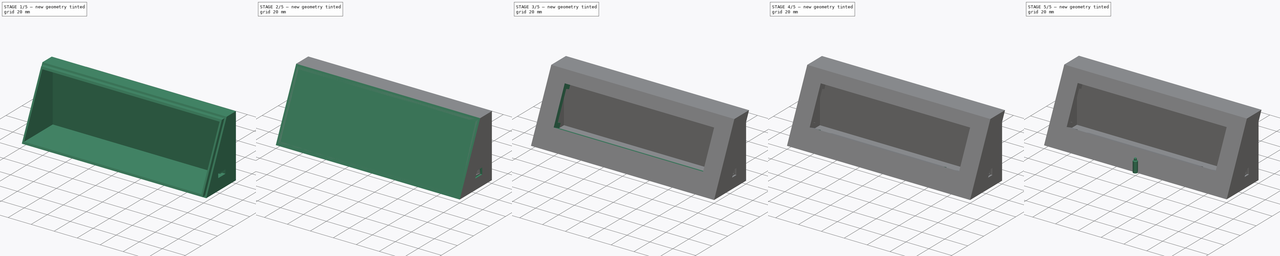
[diagram: build sequence overview — one tinted view per stage of 5, left to right]
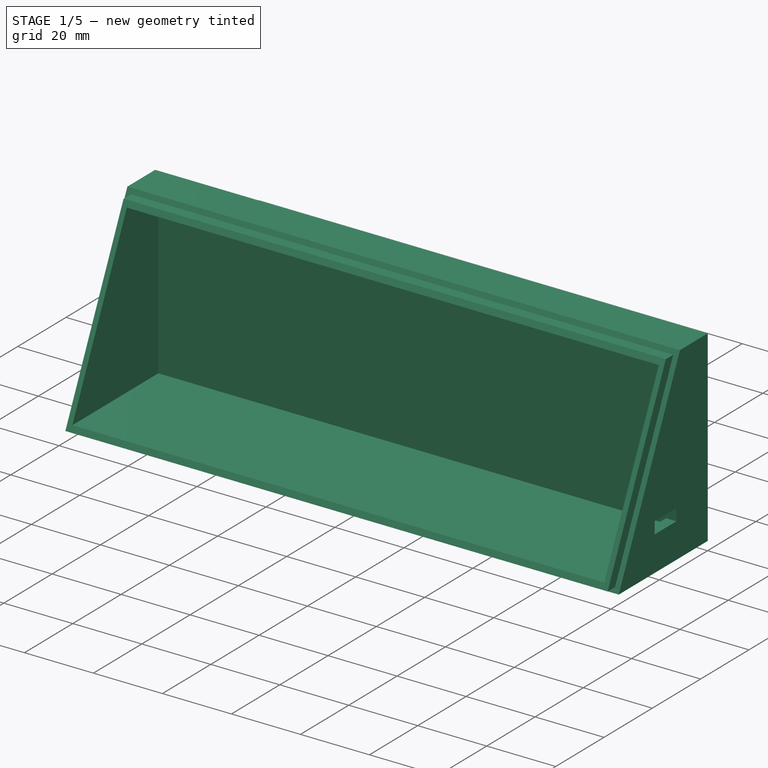
[diagram: stage 1 of 5 — iso view after this stage's code; geometry added in this stage tinted green]
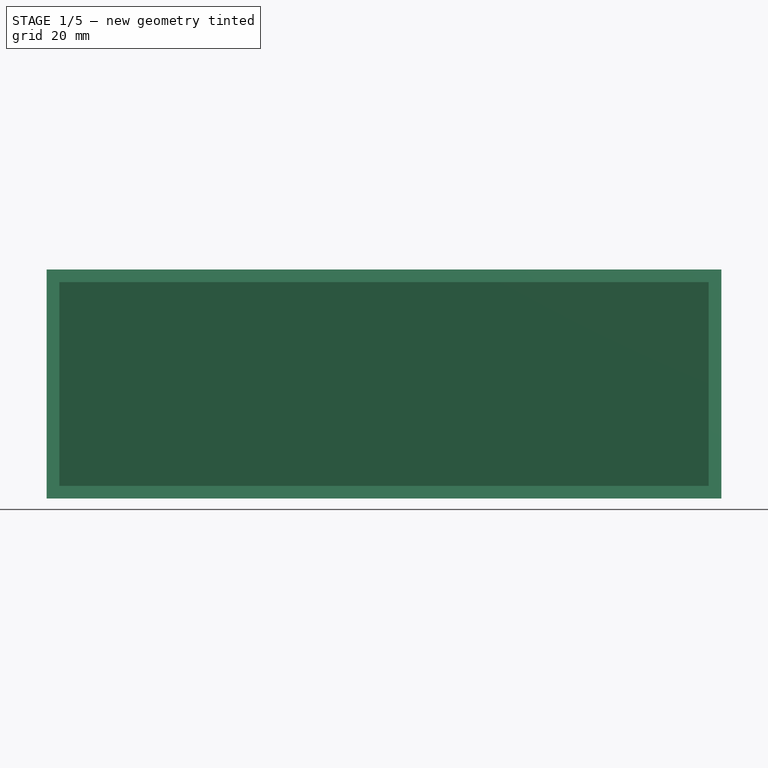
[diagram: stage 1 of 5 — front view after this stage's code; geometry added in this stage tinted green]
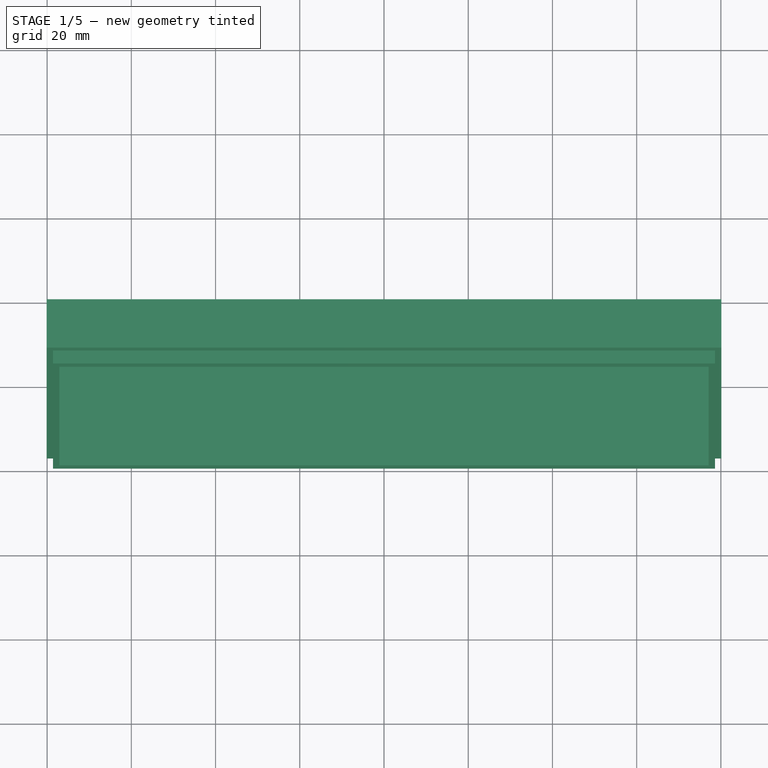
[diagram: stage 1 of 5 — top view after this stage's code; geometry added in this stage tinted green]
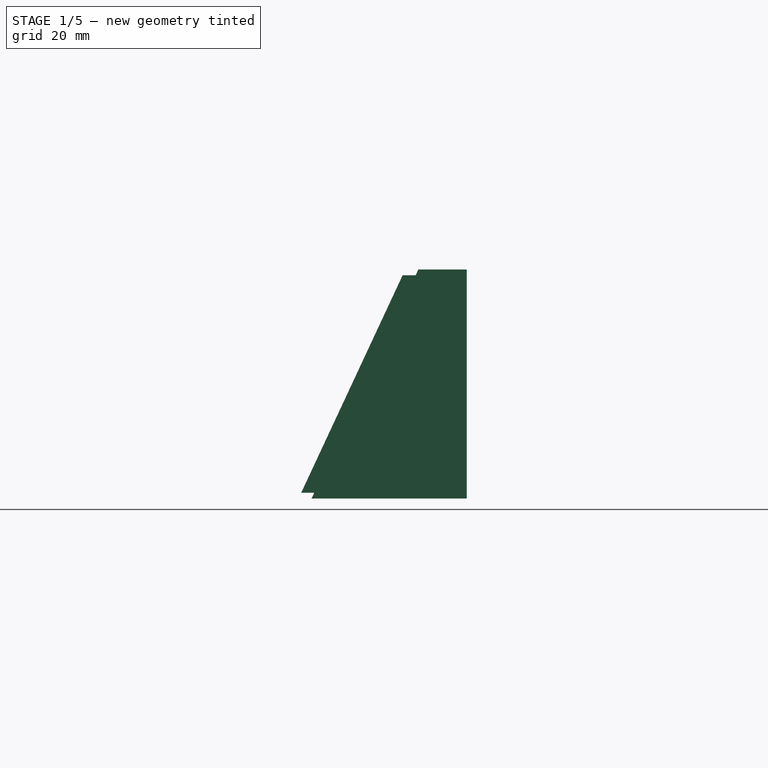
[diagram: stage 1 of 5 — right view after this stage's code; geometry added in this stage tinted green]
FCSTD DOCUMENT  (FreeCAD 1.0R39285 (Git))
Label: C1141 RevA6
License: All rights reserved
LicenseURL: https://en.wikipedia.org/wiki/All_rights_reserved
objects: Sketcher::SketchObject×16, PartDesign::Pocket×9, PartDesign::Pad×7, PartDesign::Chamfer×6, PartDesign::Body×3, PartDesign::Mirrored×2
note: 105 computed .brp shape members not serialized (recipe doc carries the construction recipe); baked Part::Feature solids carry a one-line shape summary decoded from their .brp

FEATURE [Sketcher::SketchObject] Sketch005
  ArcFitTolerance = 1e-06
  AttachmentSupport = -> [YZ_Plane001]
  FullyConstrained = true
  MakeInternals = false
  MapMode = 5
  Placement = pos=(0,0,0) rot=(0.57735,0.57735,0.57735;2.0944rad)
  sketch-geometry (11):
    g0: LineSegment [constr] StartX=0 StartY=0 StartZ=0 EndX=25.3571 EndY=54.3785 EndZ=0
    g1: LineSegment StartX=39.9582 StartY=54.3785 StartZ=0 EndX=39.9582 EndY=0 EndZ=0
    g2: LineSegment StartX=39.9582 StartY=0 StartZ=0 EndX=0 EndY=0 EndZ=0
    g3: LineSegment StartX=39.9582 StartY=54.3785 StartZ=0 EndX=25.3571 EndY=54.3785 EndZ=0
    g4: LineSegment StartX=23.9582 StartY=51.3785 StartZ=0 EndX=36.9582 EndY=51.3785 EndZ=0
    g5: LineSegment StartX=36.9582 StartY=51.3785 StartZ=0 EndX=36.9582 EndY=3 EndZ=0
    g6: LineSegment StartX=36.9582 StartY=3 StartZ=0 EndX=1.39892 EndY=3 EndZ=0
    g7: LineSegment StartX=1.39892 StartY=3 StartZ=0 EndX=0 EndY=0 EndZ=0
    g8: LineSegment StartX=25.3571 StartY=54.3785 StartZ=0 EndX=23.9582 EndY=51.3785 EndZ=0
    g9: LineSegment [constr] StartX=36.9582 StartY=51.3785 StartZ=0 EndX=39.9582 EndY=54.3785 EndZ=0
    g10: LineSegment [constr] StartX=36.9582 StartY=3 StartZ=0 EndX=39.9582 EndY=0 EndZ=0
  constraints (29):
    c: Coincident(g0,g-1)
    c: PointOnObject(g1,g-1)
    c: Vertical(g1)
    c: Coincident(g2,g1)
    c: Coincident(g2,g0)
    c: Coincident(g3,g1)
    c: Coincident(g3,g0)
    c: Coincident(g5,g4)
    c: Vertical(g5)
    c: Coincident(g6,g5)
    c: Coincident(g7,g6)
    c: Coincident(g7,g0)
    c: Angle(g2,g0) = 1.13446
    c: PointOnObject(g6,g0)
    c: Coincident(g8,g0)
    c: Coincident(g8,g4)
    c: Equal(g8,g7)
    c: PointOnObject(g4,g0)
    c: Horizontal(g4)
    c: Horizontal(g6)
    c: Horizontal(g3)
    c: Distance(g0,g0) = 60
    c: Coincident(g9,g4)
    c: Coincident(g9,g1)
    c: Coincident(g10,g5)
    c: Coincident(g10,g1)
    c: DistanceX(g9,g9) = 3
    c: DistanceY(g9,g9) = 3
    c: DistanceX(g4,g4) = 13
FEATURE [PartDesign::Pad] Pad003
  Direction = (1,0,0)
  Length = 154.2
  Length2 = 10
  Midplane = true
  Placement = pos=(0,0,0) rot=(1,1,1;2.0944rad)
  Profile = -> Sketch005
  ReferenceAxis = -> Sketch005 [N_Axis]
  Refine = true
  Suppressed = false
  Type = 0
FEATURE [Sketcher::SketchObject] Sketch006
  ArcFitTolerance = 1e-06
  AttachmentSupport = -> [Pad003]
  ExternalGeometry = -> [Pad003]
  FullyConstrained = true
  MakeInternals = false
  MapMode = 5
  Placement = pos=(77.1,0,0) rot=(0.57735,0.57735,0.57735;2.0944rad)
  sketch-geometry (4):
    g0: LineSegment StartX=39.9582 StartY=54.3785 StartZ=0 EndX=25.3571 EndY=54.3785 EndZ=0
    g1: LineSegment StartX=25.3571 StartY=54.3785 StartZ=0 EndX=0 EndY=0 EndZ=0
    g2: LineSegment StartX=0 StartY=0 StartZ=0 EndX=39.9582 EndY=0 EndZ=0
    g3: LineSegment StartX=39.9582 StartY=0 StartZ=0 EndX=39.9582 EndY=54.3785 EndZ=0
  constraints (8):
    c: Coincident(g0,g-3)
    c: Coincident(g1,g0)
    c: Coincident(g1,g-1)
    c: Coincident(g2,g1)
    c: Coincident(g2,g-3)
    c: Coincident(g3,g2)
    c: Coincident(g3,g0)
    c: Coincident(g0,g-4)
FEATURE [PartDesign::Pad] Pad004
  BaseFeature = -> Pad003
  Direction = (1,0,0)
  Length = 3
  Length2 = 10
  Placement = pos=(0,0,0) rot=(1,1,1;2.0944rad)
  Profile = -> Sketch006
  ReferenceAxis = -> Sketch006 [N_Axis]
  Refine = true
  Suppressed = false
  Type = 0
FEATURE [PartDesign::Mirrored] Mirrored001
  BaseFeature = -> Pad004
  MirrorPlane = -> YZ_Plane001
  Originals = -> [Pad004]
  Placement = pos=(0,0,0) rot=(1,1,1;2.0944rad)
  Refine = true
  Suppressed = false
  TransformMode = 0
FEATURE [Sketcher::SketchObject] Sketch007
  ArcFitTolerance = 1e-06
  AttachmentSupport = -> [Mirrored001]
  ExternalGeometry = -> [Mirrored001]
  FullyConstrained = true
  MakeInternals = false
  MapMode = 5
  Placement = pos=(0,6.4e-15,-3e-15) rot=(0.473306,0.473306,-0.742942;1.86366rad)
  sketch-geometry (14):
    g0: LineSegment StartX=-60 StartY=-80.1 StartZ=0 EndX=4.974e-13 EndY=-80.1 EndZ=0
    g1: LineSegment StartX=4.974e-13 StartY=-80.1 StartZ=0 EndX=-1.43e-14 EndY=80.1 EndZ=0
    g2: LineSegment StartX=-1.43e-14 StartY=80.1 StartZ=0 EndX=-60 EndY=80.1 EndZ=0
    g3: LineSegment StartX=-60 StartY=80.1 StartZ=0 EndX=-60 EndY=-80.1 EndZ=0
    g4: LineSegment StartX=-1.5 StartY=78.6 StartZ=0 EndX=-58.5 EndY=78.6 EndZ=0
    g5: LineSegment StartX=-58.5 StartY=78.6 StartZ=0 EndX=-58.5 EndY=-78.6 EndZ=0
    g6: LineSegment StartX=-58.5 StartY=-78.6 StartZ=0 EndX=-1.5 EndY=-78.6 EndZ=0
    g7: LineSegment StartX=-1.5 StartY=-78.6 StartZ=0 EndX=-1.5 EndY=78.6 EndZ=0
    g8: GeomPoint X=-30 Y=78.6 Z=0
    g9: GeomPoint X=-30 Y=80.1 Z=0
    g10: GeomPoint X=0 Y=0 Z=0
    g11: GeomPoint X=-1.5 Y=0 Z=0
    g12: LineSegment [constr] StartX=-1.5 StartY=0 StartZ=0 EndX=0 EndY=0 EndZ=0
    g13: LineSegment [constr] StartX=-30 StartY=78.6 StartZ=0 EndX=-30 EndY=80.1 EndZ=0
  constraints (29):
    c: Coincident(g0,g1)
    c: Coincident(g1,g2)
    c: Coincident(g2,g3)
    c: Coincident(g3,g0)
    c: Horizontal(g2)
    c: Vertical(g3)
    c: Coincident(g0,g-3)
    c: Coincident(g1,g-4)
    c: Coincident(g4,g5)
    c: Coincident(g5,g6)
    c: Coincident(g6,g7)
    c: Coincident(g7,g4)
    c: Horizontal(g4)
    c: Horizontal(g6)
    c: Vertical(g5)
    c: Vertical(g7)
    c: Symmetric(g4,g4,g8)
    c: Symmetric(g2,g2,g9)
    c: Symmetric(g1,g1,g10)
    c: Symmetric(g7,g7,g11)
    c: Coincident(g12,g11)
    c: Coincident(g13,g8)
    c: Symmetric(g2,g2,g13)
    c: Vertical(g13)
    c: Coincident(g10,g12)
    c: Coincident(g10,g-1)
    c: Horizontal(g12)
    c: DistanceY(g13,g13) = 1.5
    c: Distance(g12,g12) = 1.5
FEATURE [PartDesign::Pocket] Pocket002
  BaseFeature = -> Mirrored001
  Direction = (-1e-16,-1,1e-16)
  Length = 2.8
  Length2 = 5
  Placement = pos=(0,0,0) rot=(1,1,1;2.0944rad)
  Profile = -> Sketch007
  ReferenceAxis = -> Y_Axis001
  Refine = true
  Reversed = true
  Suppressed = false
  Type = 0
FEATURE [Sketcher::SketchObject] Sketch010
  ArcFitTolerance = 1e-06
  ExternalGeometry = -> [Pocket002]
  FullyConstrained = true
  MakeInternals = false
  MapMode = 5
  Placement = pos=(80.1,-3.56e-14,1.78e-14) rot=(0.57735,0.57735,0.57735;2.0944rad)
  expr: Constraints[20] = 6.6 mm + 1 mm
  sketch-geometry (8):
    g0: LineSegment StartX=17.9582 StartY=10.1 StartZ=0 EndX=26.9582 EndY=10.1 EndZ=0
    g1: LineSegment StartX=26.9582 StartY=10.1 StartZ=0 EndX=26.9582 EndY=13.6 EndZ=0
    g2: LineSegment StartX=26.9582 StartY=13.6 StartZ=0 EndX=17.9582 EndY=13.6 EndZ=0
    g3: LineSegment StartX=17.9582 StartY=13.6 StartZ=0 EndX=17.9582 EndY=10.1 EndZ=0
    g4: LineSegment [constr] StartX=17.9582 StartY=10.1 StartZ=0 EndX=11.9582 EndY=10.6 EndZ=0
    g5: LineSegment [constr] StartX=26.9582 StartY=10.1 StartZ=0 EndX=32.9582 EndY=10.6 EndZ=0
    g6: LineSegment [constr] StartX=32.9582 StartY=10.6 StartZ=0 EndX=11.9582 EndY=10.6 EndZ=0
    g7: LineSegment [constr] StartX=32.9582 StartY=10.6 StartZ=0 EndX=36.9582 EndY=3 EndZ=0
  constraints (22):
    c: Coincident(g0,g1)
    c: Coincident(g1,g2)
    c: Coincident(g2,g3)
    c: Coincident(g3,g0)
    c: Horizontal(g0)
    c: Horizontal(g2)
    c: Vertical(g1)
    c: Vertical(g3)
    c: DistanceX(g2,g2) = 9
    c: DistanceY(g3,g3) = 3.5
    c: Coincident(g4,g0)
    c: Coincident(g5,g0)
    c: Equal(g5,g4)
    c: DistanceY(g4,g4) = 0.5
    c: Coincident(g6,g5)
    c: Coincident(g6,g4)
    c: Horizontal(g6)
    c: Coincident(g7,g5)
    c: DistanceX(g6,g6) = 21
    c: DistanceX(g7,g7) = 4
    c: DistanceY(g7,g7) = 7.6
    c: Coincident(g7,g-3)
FEATURE [PartDesign::Pocket] Pocket003
  BaseFeature = -> Pocket002
  Direction = (-1,-1e-16,1e-16)
  Length = 5
  Length2 = 5
  Placement = pos=(0,0,0) rot=(1,1,1;2.0944rad)
  Profile = -> Sketch010
  ReferenceAxis = -> Sketch010 [N_Axis]
  Refine = true
  Suppressed = false
  Type = 2
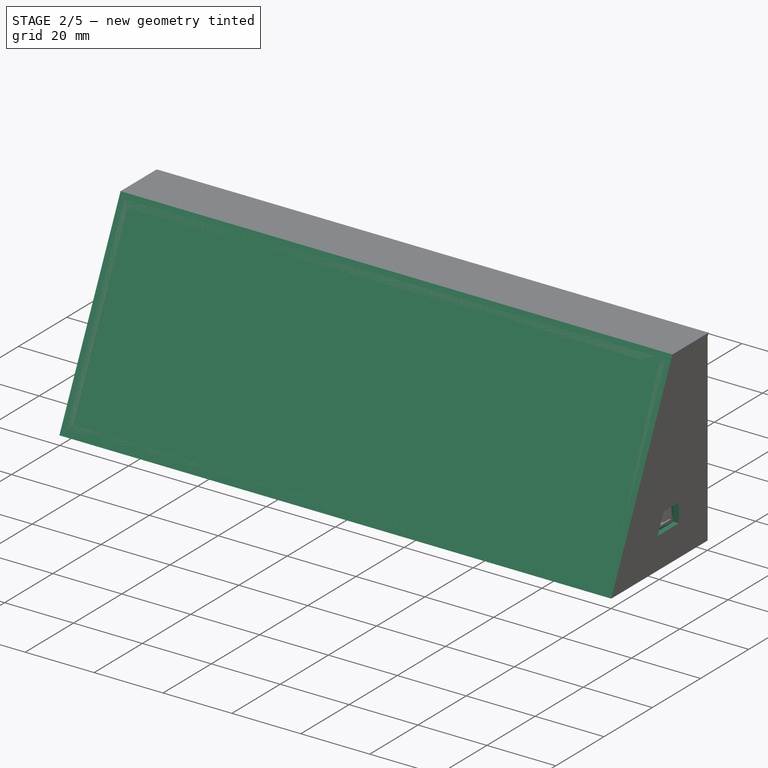
[diagram: stage 2 of 5 — iso view after this stage's code; geometry added in this stage tinted green]
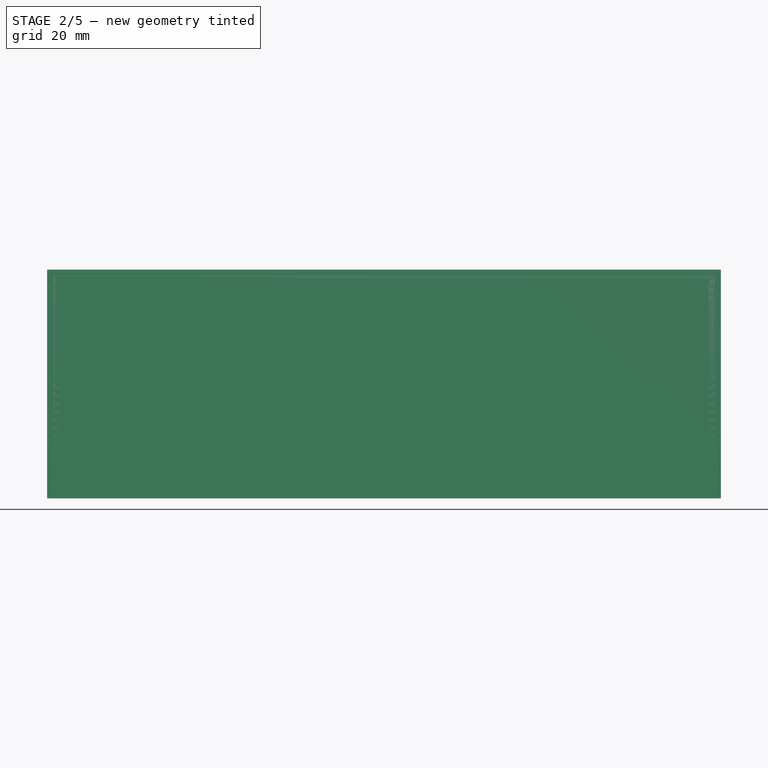
[diagram: stage 2 of 5 — front view after this stage's code; geometry added in this stage tinted green]
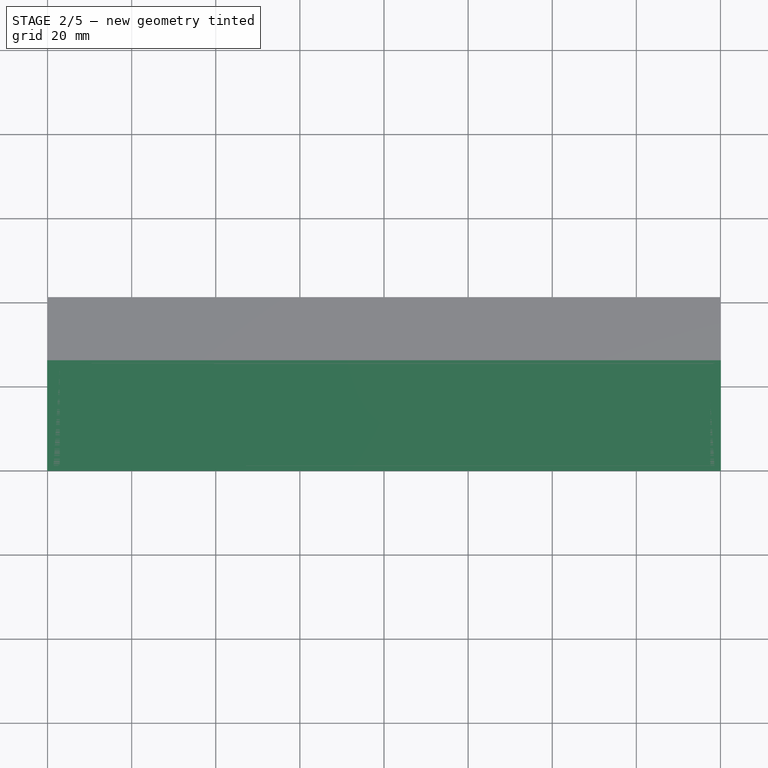
[diagram: stage 2 of 5 — top view after this stage's code; geometry added in this stage tinted green]
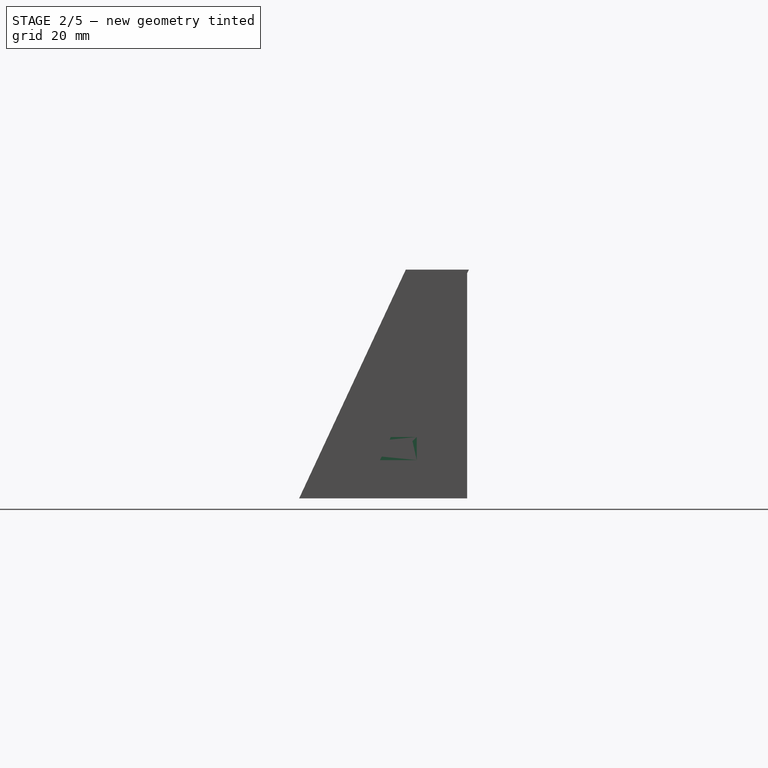
[diagram: stage 2 of 5 — right view after this stage's code; geometry added in this stage tinted green]
FEATURE [Sketcher::SketchObject] Sketch
  ArcFitTolerance = 1e-06
  AttachmentSupport = -> [YZ_Plane]
  FullyConstrained = true
  MakeInternals = false
  MapMode = 5
  Placement = pos=(0,0,0) rot=(0.57735,0.57735,0.57735;2.0944rad)
  sketch-geometry (21):
    g0: LineSegment StartX=0 StartY=0 StartZ=0 EndX=25.3571 EndY=54.3785 EndZ=0
    g1: LineSegment StartX=25.3571 StartY=54.3785 StartZ=0 EndX=40.3571 EndY=54.3785 EndZ=0
    g2: LineSegment StartX=15 StartY=0 StartZ=0 EndX=0 EndY=0 EndZ=0
    g3: LineSegment [constr] StartX=3.59226 StartY=7.70362 StartZ=0 EndX=17.1869 EndY=1.36434 EndZ=0
    g4: LineSegment [constr] StartX=17.1869 StartY=1.36434 StartZ=0 EndX=35.3595 EndY=40.3356 EndZ=0
    g5: LineSegment [constr] StartX=35.3595 StartY=40.3356 StartZ=0 EndX=21.7648 EndY=46.6749 EndZ=0
    g6: LineSegment [constr] StartX=21.7648 StartY=46.6749 StartZ=0 EndX=3.59226 EndY=7.70362 EndZ=0
    g7: LineSegment [constr] StartX=35.3595 StartY=40.3356 StartZ=0 EndX=25.3571 EndY=54.3785 EndZ=0
    g8: LineSegment [constr] StartX=17.1869 StartY=1.36434 StartZ=0 EndX=0 EndY=0 EndZ=0
    g9: LineSegment [constr] StartX=25.3571 StartY=54.3785 StartZ=0 EndX=21.0198 EndY=45.0772 EndZ=0
    g10: LineSegment [constr] StartX=21.0198 StartY=45.0772 StartZ=0 EndX=28.089 EndY=41.7808 EndZ=0
    g11: LineSegment StartX=28.089 StartY=41.7808 StartZ=0 EndX=32.5645 EndY=51.3785 EndZ=0
    g12: LineSegment StartX=32.5645 StartY=51.3785 StartZ=0 EndX=38.9582 EndY=51.3785 EndZ=0
    g13: LineSegment StartX=16.3989 StartY=3 StartZ=0 EndX=10.0053 EndY=3 EndZ=0
    g14: LineSegment StartX=10.0053 StartY=3 StartZ=0 EndX=14.4807 EndY=12.5977 EndZ=0
    g15: LineSegment [constr] StartX=14.4807 StartY=12.5977 StartZ=0 EndX=7.41154 EndY=15.8941 EndZ=0
    g16: LineSegment [constr] StartX=7.41154 StartY=15.8941 StartZ=0 EndX=-9e-16 EndY=0 EndZ=0
    g17: LineSegment StartX=38.9582 StartY=51.3785 StartZ=0 EndX=40.3571 EndY=54.3785 EndZ=0
    g18: LineSegment StartX=16.3989 StartY=3 StartZ=0 EndX=15 EndY=0 EndZ=0
    g19: LineSegment StartX=28.089 StartY=41.7808 StartZ=0 EndX=14.4807 EndY=12.5977 EndZ=0
    g20: LineSegment [constr] StartX=38.9582 StartY=51.3785 StartZ=0 EndX=16.3989 EndY=3 EndZ=0
  constraints (58):
    c: Coincident(g0,g-1)
    c: Coincident(g1,g0)
    c: Horizontal(g1)
    c: PointOnObject(g2,g-1)
    c: Coincident(g2,g0)
    c: Distance(g0,g0) = 60
    c: Angle(g2,g0) = 1.13446
    c: Coincident(g3,g4)
    c: Coincident(g4,g5)
    c: Coincident(g5,g6)
    c: Coincident(g6,g3)
    c: PointOnObject(g5,g0)
    c: Perpendicular(g5,g6)
    c: Perpendicular(g3,g6)
    c: Perpendicular(g3,g4)
    c: PointOnObject(g3,g0)
    c: Distance(g4,g4) = 43
    c: Distance(g5,g5) = 15
    c: Coincident(g7,g4)
    c: Coincident(g7,g0)
    c: Coincident(g8,g3)
    c: Coincident(g8,g0)
    c: Equal(g7,g8)
    c: DistanceX(g1,g1) = 15
    c: Coincident(g9,g0)
    c: Coincident(g10,g9)
    c: Coincident(g11,g10)
    c: Coincident(g12,g11)
    c: Horizontal(g12)
    c: Horizontal(g13)
    c: Coincident(g14,g13)
    c: Coincident(g15,g14)
    c: Coincident(g16,g15)
    c: Coincident(g16,g0)
    c: Parallel(g16,g0)
    c: Perpendicular(g16,g15)
    c: Perpendicular(g15,g14)
    c: Perpendicular(g10,g9)
    c: Perpendicular(g10,g11)
    c: Parallel(g9,g0)
    c: Equal(g10,g15)
    c: Coincident(g17,g1)
    c: Coincident(g17,g12)
    c: DistanceY(g17,g17) = 3
    c: Equal(g18,g17)
    c: Coincident(g19,g10)
    c: Coincident(g19,g14)
    c: Distance(g19,g19) = 32.2
    c: Distance(g15,g15) = 7.8
    c: Equal(g11,g14)
    c: Coincident(g13,g18)
    c: Coincident(g2,g18)
    c: Coincident(g20,g12)
    c: Coincident(g20,g13)
    c: Parallel(g20,g18)
    c: Parallel(g20,g17)
    c: Parallel(g18,g0)
    c: DistanceX(g2,g2) = 15
FEATURE [PartDesign::Pad] Pad
  Direction = (1,0,0)
  Length = 154.2
  Length2 = 10
  Midplane = true
  Placement = pos=(0,0,0) rot=(1,1,1;2.0944rad)
  Profile = -> Sketch
  ReferenceAxis = -> Sketch [N_Axis]
  Refine = true
  Suppressed = false
  Type = 0
FEATURE [Sketcher::SketchObject] Sketch001
  ArcFitTolerance = 1e-06
  AttachmentSupport = -> [Pad]
  ExternalGeometry = -> [Pad]
  FullyConstrained = true
  MakeInternals = false
  MapMode = 5
  Placement = pos=(77.1,0,0) rot=(0.57735,0.57735,0.57735;2.0944rad)
  sketch-geometry (4):
    g0: LineSegment StartX=40.3571 StartY=54.3785 StartZ=0 EndX=15 EndY=0 EndZ=0
    g1: LineSegment StartX=15 StartY=0 StartZ=0 EndX=0 EndY=0 EndZ=0
    g2: LineSegment StartX=0 StartY=0 StartZ=0 EndX=25.3571 EndY=54.3785 EndZ=0
    g3: LineSegment StartX=25.3571 StartY=54.3785 StartZ=0 EndX=40.3571 EndY=54.3785 EndZ=0
  constraints (8):
    c: Coincident(g0,g-3)
    c: Coincident(g0,g-4)
    c: Coincident(g1,g0)
    c: Coincident(g1,g-1)
    c: Coincident(g2,g1)
    c: Coincident(g2,g-5)
    c: Coincident(g3,g2)
    c: Coincident(g3,g0)
FEATURE [PartDesign::Pad] Pad001
  BaseFeature = -> Pad
  Direction = (1,0,0)
  Length = 3
  Length2 = 10
  Placement = pos=(0,0,0) rot=(1,1,1;2.0944rad)
  Profile = -> Sketch001
  ReferenceAxis = -> Sketch001 [N_Axis]
  Refine = true
  Suppressed = false
  Type = 0
FEATURE [PartDesign::Mirrored] Mirrored
  BaseFeature = -> Pad001
  MirrorPlane = -> YZ_Plane
  Originals = -> [Pad001]
  Placement = pos=(0,0,0) rot=(1,1,1;2.0944rad)
  Refine = true
  Suppressed = false
  TransformMode = 0
FEATURE [Sketcher::SketchObject] Sketch011
  ArcFitTolerance = 1e-06
  AttachmentSupport = -> [Pocket003]
  ExternalGeometry = -> [Pocket003]
  FullyConstrained = true
  MakeInternals = false
  MapMode = 5
  Placement = pos=(80.1,0,0) rot=(0.57735,0.57735,0.57735;2.0944rad)
  sketch-geometry (10):
    g0: LineSegment StartX=16.9582 StartY=14.6 StartZ=0 EndX=16.9582 EndY=9.1 EndZ=0
    g1: LineSegment StartX=16.9582 StartY=9.1 StartZ=0 EndX=27.9582 EndY=9.1 EndZ=0
    g2: LineSegment StartX=27.9582 StartY=9.1 StartZ=0 EndX=27.9582 EndY=14.6 EndZ=0
    g3: LineSegment StartX=27.9582 StartY=14.6 StartZ=0 EndX=16.9582 EndY=14.6 EndZ=0
    g4: GeomPoint X=22.4582 Y=14.6 Z=0
    g5: GeomPoint X=22.4582 Y=13.6 Z=0
    g6: GeomPoint X=16.9582 Y=11.85 Z=0
    g7: GeomPoint X=17.9582 Y=11.85 Z=0
    g8: LineSegment [constr] StartX=17.9582 StartY=11.85 StartZ=0 EndX=16.9582 EndY=11.85 EndZ=0
    g9: LineSegment [constr] StartX=22.4582 StartY=13.6 StartZ=0 EndX=22.4582 EndY=14.6 EndZ=0
  constraints (20):
    c: Coincident(g0,g1)
    c: Coincident(g1,g2)
    c: Coincident(g2,g3)
    c: Coincident(g3,g0)
    c: Vertical(g0)
    c: Vertical(g2)
    c: Horizontal(g1)
    c: Horizontal(g3)
    c: Symmetric(g3,g3,g4)
    c: Symmetric(g-4,g-4,g5)
    c: Symmetric(g0,g0,g6)
    c: Symmetric(g-5,g-5,g7)
    c: Coincident(g8,g7)
    c: Coincident(g8,g6)
    c: Horizontal(g8)
    c: Coincident(g9,g5)
    c: Coincident(g9,g4)
    c: Vertical(g9)
    c: DistanceX(g0,g-5) = 1
    c: DistanceY(g-5,g0) = 1
FEATURE [PartDesign::Pocket] Pocket004
  BaseFeature = -> Pocket003
  Direction = (-1,0,0)
  Length = 1.5
  Length2 = 5
  Placement = pos=(0,0,0) rot=(1,1,1;2.0944rad)
  Profile = -> Sketch011
  ReferenceAxis = -> Sketch011 [N_Axis]
  Refine = true
  Suppressed = false
  Type = 0
FEATURE [PartDesign::Body] Body  label="C1141"
  AllowCompound = false
  Group = -> [Sketch,Pad,Sketch001,Pad001,Mirrored,Sketch002,Pocket,Sketch003,Pocket001,Sketch004,Pad002,Sketch014,Pocket006,Sketch015,Pocket007,Chamfer,Chamfer001,Chamfer005]
  Origin = -> Origin
  Tip = -> Chamfer005
FEATURE [Sketcher::SketchObject] Sketch016
  ArcFitTolerance = 1e-06
  AttachmentSupport = -> [Pocket004]
  ExternalGeometry = -> [Pocket004]
  FullyConstrained = true
  MakeInternals = false
  MapMode = 5
  Placement = pos=(77.1,0,0) rot=(0.57735,0.57735,-0.57735;4.18879rad)
  sketch-geometry (12):
    g0: LineSegment StartX=27.9582 StartY=-9.1 StartZ=0 EndX=16.9582 EndY=-9.1 EndZ=0
    g1: LineSegment StartX=16.9582 StartY=-9.1 StartZ=0 EndX=16.9582 EndY=-14.6 EndZ=0
    g2: LineSegment StartX=16.9582 StartY=-14.6 StartZ=0 EndX=27.9582 EndY=-14.6 EndZ=0
    g3: LineSegment StartX=27.9582 StartY=-14.6 StartZ=0 EndX=27.9582 EndY=-9.1 EndZ=0
    g4: GeomPoint X=22.4582 Y=-10.1 Z=0
    g5: GeomPoint X=22.4582 Y=-9.1 Z=0
    g6: GeomPoint X=22.4582 Y=-13.6 Z=0
    g7: GeomPoint X=22.4582 Y=-14.6 Z=0
    g8: LineSegment [constr] StartX=22.4582 StartY=-10.1 StartZ=0 EndX=22.4582 EndY=-9.1 EndZ=0
    g9: GeomPoint [constr] X=17.9582 Y=-11.85 Z=0
    g10: GeomPoint [constr] X=16.9582 Y=-11.85 Z=0
    g11: LineSegment [constr] StartX=17.9582 StartY=-11.85 StartZ=0 EndX=16.9582 EndY=-11.85 EndZ=0
  constraints (22):
    c: Coincident(g0,g1)
    c: Coincident(g1,g2)
    c: Coincident(g2,g3)
    c: Coincident(g3,g0)
    c: Horizontal(g0)
    c: Horizontal(g2)
    c: Vertical(g1)
    c: Vertical(g3)
    c: Symmetric(g-3,g-3,g4)
    c: Symmetric(g0,g0,g5)
    c: Symmetric(g-4,g-4,g6)
    c: Symmetric(g2,g2,g7)
    c: Coincident(g8,g4)
    c: Coincident(g8,g5)
    c: Vertical(g8)
    c: Symmetric(g-5,g-5,g9)
    c: Symmetric(g1,g1,g10)
    c: Symmetric(g-5,g-5,g11)
    c: Coincident(g11,g10)
    c: Horizontal(g11)
    c: Equal(g8,g11)
    c: DistanceY(g8,g8) = 1
FEATURE [PartDesign::Pocket] Pocket008
  BaseFeature = -> Pocket004
  Direction = (1,0,0)
  Length = 1
  Length2 = 5
  Placement = pos=(0,0,0) rot=(1,1,1;2.0944rad)
  Profile = -> Sketch016
  ReferenceAxis = -> Sketch016 [N_Axis]
  Refine = true
  Suppressed = false
  Type = 0
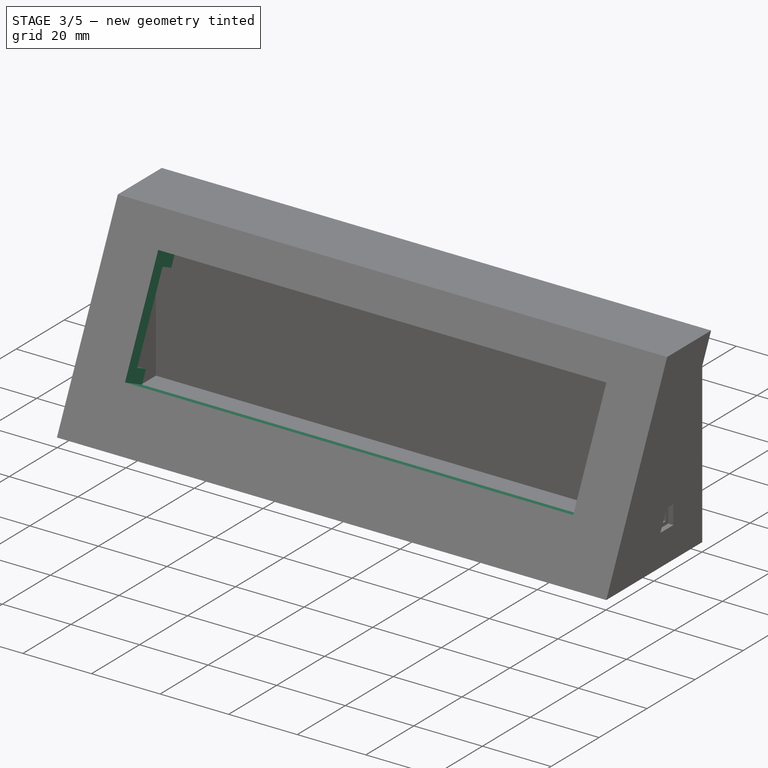
[diagram: stage 3 of 5 — iso view after this stage's code; geometry added in this stage tinted green]
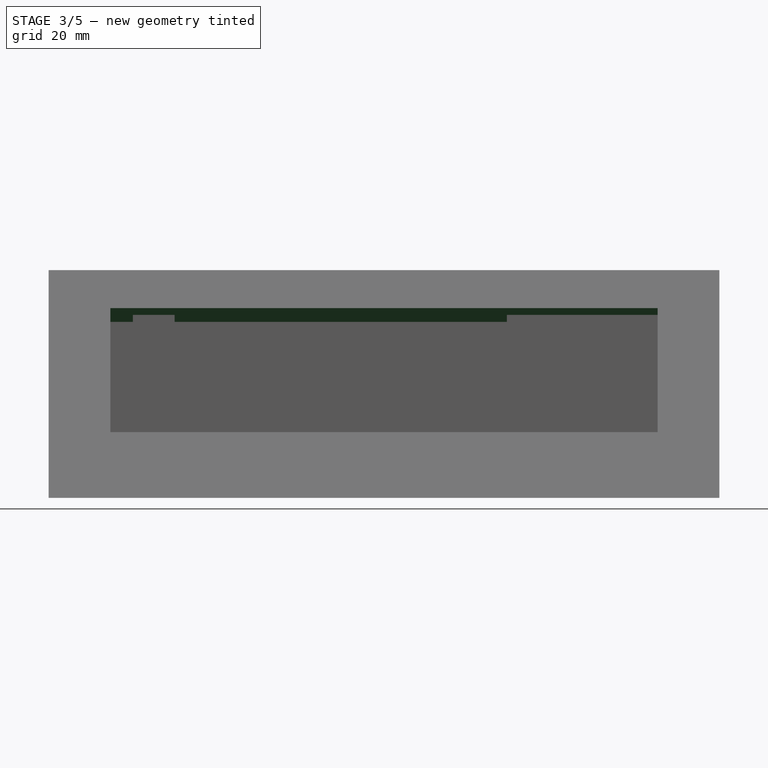
[diagram: stage 3 of 5 — front view after this stage's code; geometry added in this stage tinted green]
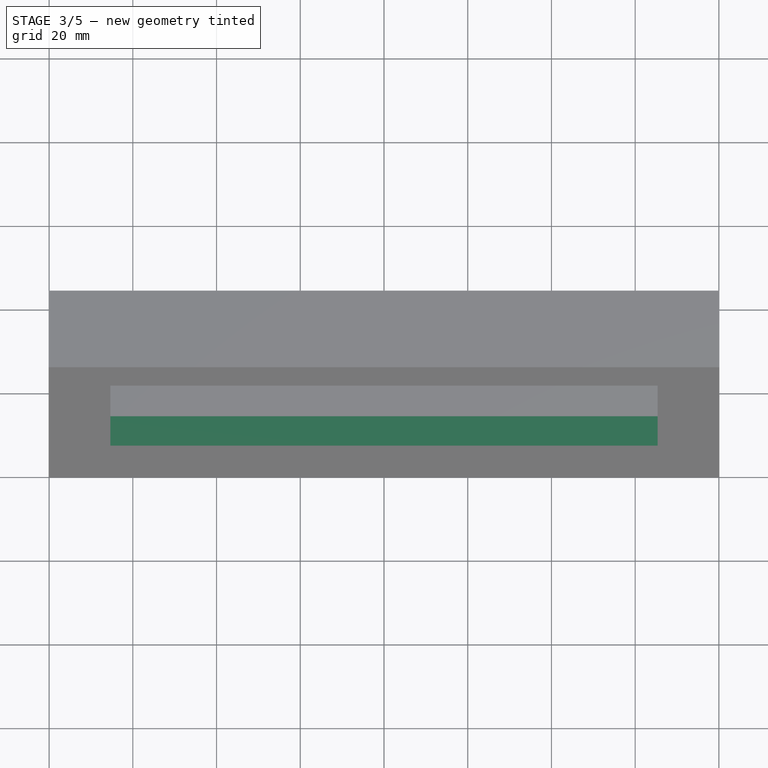
[diagram: stage 3 of 5 — top view after this stage's code; geometry added in this stage tinted green]
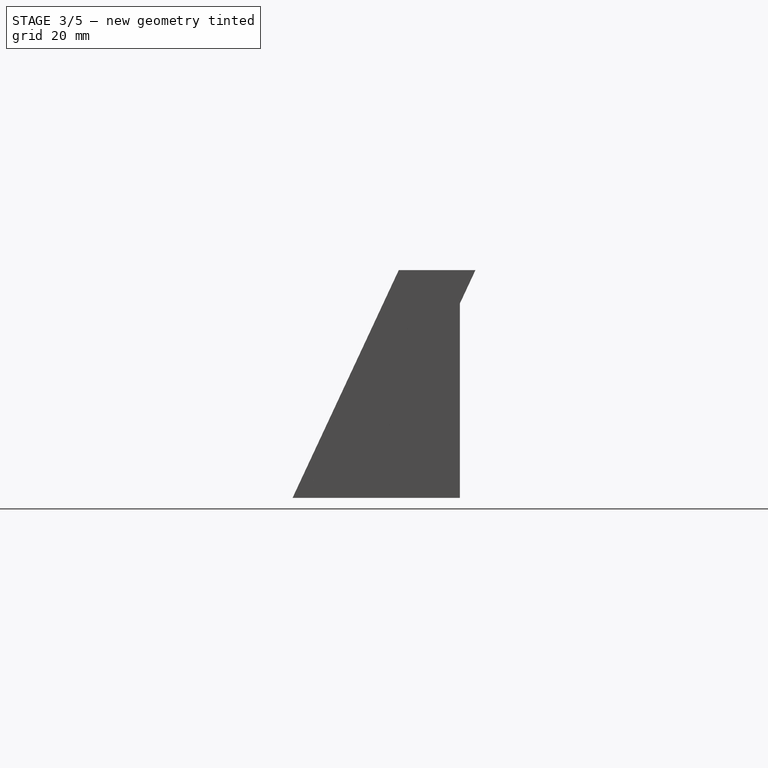
[diagram: stage 3 of 5 — right view after this stage's code; geometry added in this stage tinted green]
FEATURE [Sketcher::SketchObject] Sketch002
  ArcFitTolerance = 1e-06
  AttachmentSupport = -> [Mirrored]
  ExternalGeometry = -> [Mirrored]
  FullyConstrained = true
  MakeInternals = false
  MapMode = 5
  Placement = pos=(0,-1.45e-14,6.8e-15) rot=(0.473306,0.473306,-0.742942;1.86366rad)
  sketch-geometry (7):
    g0: LineSegment StartX=-17.3 StartY=-65.35 StartZ=0 EndX=-17.3 EndY=65.35 EndZ=0
    g1: LineSegment StartX=-17.3 StartY=65.35 StartZ=0 EndX=-50 EndY=65.35 EndZ=0
    g2: LineSegment StartX=-50 StartY=65.35 StartZ=0 EndX=-50 EndY=-65.35 EndZ=0
    g3: LineSegment StartX=-50 StartY=-65.35 StartZ=0 EndX=-17.3 EndY=-65.35 EndZ=0
    g4: LineSegment [constr] StartX=-50 StartY=-65.35 StartZ=0 EndX=-60 EndY=-80.1 EndZ=0
    g5: LineSegment [constr] StartX=-50 StartY=65.35 StartZ=0 EndX=-60 EndY=80.1 EndZ=0
    g6: LineSegment [constr] StartX=-17.3 StartY=65.35 StartZ=0 EndX=1.42e-14 EndY=80.1 EndZ=0
  constraints (19):
    c: Coincident(g0,g1)
    c: Coincident(g1,g2)
    c: Coincident(g2,g3)
    c: Coincident(g3,g0)
    c: Vertical(g0)
    c: Vertical(g2)
    c: Horizontal(g1)
    c: Horizontal(g3)
    c: DistanceY(g2,g2) = 130.7
    c: DistanceX(g1,g1) = 32.7
    c: Coincident(g4,g2)
    c: Coincident(g4,g-4)
    c: Coincident(g5,g1)
    c: Coincident(g5,g-4)
    c: Equal(g5,g4)
    c: Coincident(g6,g0)
    c: Coincident(g6,g-5)
    c: DistanceX(g6,g6) = 17.3
    c: DistanceX(g5,g5) = 10
FEATURE [PartDesign::Pocket] Pocket
  BaseFeature = -> Mirrored
  Direction = (-1e-16,0.906308,-0.422618)
  Length = 5
  Length2 = 5
  Placement = pos=(0,0,0) rot=(1,1,1;2.0944rad)
  Profile = -> Sketch002
  ReferenceAxis = -> Sketch002 [N_Axis]
  Refine = true
  Suppressed = false
  Type = 2
FEATURE [Sketcher::SketchObject] Sketch003
  ArcFitTolerance = 1e-06
  AttachmentSupport = -> [Pocket]
  ExternalGeometry = -> [Pocket]
  FullyConstrained = true
  MakeInternals = false
  MapMode = 5
  Placement = pos=(1.6e-15,7.0692,-3.29642) rot=(0.644711,0.644711,0.410726;3.92103rad)
  sketch-geometry (20):
    g0: Circle CenterX=51.05 CenterY=69.5 CenterZ=0 NormalX=0 NormalY=0 NormalZ=1 AngleXU=0 Radius=1.025
    g1: Circle CenterX=15.05 CenterY=69.5 CenterZ=0 NormalX=0 NormalY=0 NormalZ=1 AngleXU=0 Radius=1.025
    g2: Circle CenterX=51.05 CenterY=-69.5 CenterZ=0 NormalX=0 NormalY=0 NormalZ=1 AngleXU=0 Radius=1.025
    g3: Circle CenterX=15.05 CenterY=-69.5 CenterZ=0 NormalX=0 NormalY=0 NormalZ=1 AngleXU=0 Radius=1.025
    g4: LineSegment [constr] StartX=15.05 StartY=-69.5 StartZ=0 EndX=51.05 EndY=-69.5 EndZ=0
    g5: LineSegment [constr] StartX=51.05 StartY=-69.5 StartZ=0 EndX=51.05 EndY=69.5 EndZ=0
    g6: LineSegment [constr] StartX=15.05 StartY=-69.5 StartZ=0 EndX=15.05 EndY=69.5 EndZ=0
    g7: LineSegment [constr] StartX=15.05 StartY=69.5 StartZ=0 EndX=51.05 EndY=69.5 EndZ=0
    g8: LineSegment [constr] StartX=17.65 StartY=65 StartZ=0 EndX=17.65 EndY=-65 EndZ=0
    g9: LineSegment [constr] StartX=17.65 StartY=-65 StartZ=0 EndX=49.65 EndY=-65 EndZ=0
    g10: LineSegment [constr] StartX=49.65 StartY=-65 StartZ=0 EndX=49.65 EndY=65 EndZ=0
    g11: LineSegment [constr] StartX=49.65 StartY=65 StartZ=0 EndX=17.65 EndY=65 EndZ=0
    g12: GeomPoint X=33.65 Y=65.35 Z=0
    g13: GeomPoint X=33.65 Y=65 Z=0
    g14: GeomPoint X=17.3 Y=3.71e-14 Z=0
    g15: GeomPoint X=17.65 Y=3.71e-14 Z=0
    g16: LineSegment [constr] StartX=17.65 StartY=3.71e-14 StartZ=0 EndX=17.3 EndY=3.71e-14 EndZ=0
    g17: LineSegment [constr] StartX=33.65 StartY=65 StartZ=0 EndX=33.65 EndY=65.35 EndZ=0
    g18: GeomPoint [constr] X=15.05 Y=3.71e-14 Z=0
    g19: LineSegment [constr] StartX=15.05 StartY=3.71e-14 StartZ=0 EndX=17.3 EndY=3.71e-14 EndZ=0
  constraints (43):
    c: Equal(g3,g2)
    c: Equal(g2,g0)
    c: Equal(g0,g1)
    c: Diameter(g0) = 2.05
    c: Coincident(g4,g3)
    c: Coincident(g4,g2)
    c: Coincident(g5,g2)
    c: Coincident(g5,g0)
    c: Vertical(g5)
    c: Horizontal(g4)
    c: Coincident(g6,g3)
    c: Coincident(g6,g1)
    c: Vertical(g6)
    c: Coincident(g7,g0)
    c: Horizontal(g7)
    c: Coincident(g1,g7)
    c: DistanceY(g5,g5) = 139
    c: DistanceX(g4,g4) = 36
    c: Coincident(g8,g9)
    c: Coincident(g9,g10)
    c: Coincident(g10,g11)
    c: Coincident(g11,g8)
    c: Vertical(g8)
    c: Vertical(g10)
    c: Horizontal(g9)
    c: Horizontal(g11)
    c: DistanceX(g11,g11) = 32
    c: DistanceY(g10,g10) = 130
    c: Symmetric(g-5,g-5,g12)
    c: Symmetric(g11,g11,g13)
    c: Symmetric(g-4,g-4,g14)
    c: Symmetric(g8,g8,g15)
    c: Coincident(g16,g15)
    c: Coincident(g16,g14)
    c: Horizontal(g16)
    c: Coincident(g17,g13)
    c: Coincident(g17,g12)
    c: Vertical(g17)
    c: Symmetric(g6,g6,g18)
    c: Coincident(g19,g18)
    c: Coincident(g19,g14)
    c: Horizontal(g19)
    c: DistanceX(g9,g2) = 1.4
FEATURE [PartDesign::Pocket] Pocket001
  BaseFeature = -> Pocket
  Direction = (2e-16,-0.906308,0.422618)
  Length = 4
  Length2 = 5
  Placement = pos=(0,0,0) rot=(1,1,1;2.0944rad)
  Profile = -> Sketch003
  ReferenceAxis = -> Sketch003 [N_Axis]
  Refine = true
  Suppressed = false
  Type = 0
FEATURE [Sketcher::SketchObject] Sketch004
  ArcFitTolerance = 1e-06
  AttachmentSupport = -> [Pocket001]
  ExternalGeometry = -> [Pocket001]
  FullyConstrained = false
  MakeInternals = false
  MapMode = 5
  Placement = pos=(6e-15,12.3209,-5.74533) rot=(0.644711,0.644711,0.410726;3.92103rad)
  sketch-geometry (14):
    g0: LineSegment StartX=6.33927 StartY=80.1 StartZ=0 EndX=6.33927 EndY=-80.1 EndZ=0
    g1: LineSegment StartX=6.33927 StartY=-80.1 StartZ=0 EndX=66.3393 EndY=-80.1 EndZ=0
    g2: LineSegment StartX=66.3393 StartY=-80.1 StartZ=0 EndX=66.3393 EndY=80.1 EndZ=0
    g3: LineSegment StartX=66.3393 StartY=80.1 StartZ=0 EndX=6.33927 EndY=80.1 EndZ=0
    g4: LineSegment StartX=64.8393 StartY=-78.6 StartZ=0 EndX=64.8393 EndY=78.6 EndZ=0
    g5: LineSegment StartX=64.8393 StartY=78.6 StartZ=0 EndX=7.83927 EndY=78.6 EndZ=0
    g6: LineSegment StartX=7.83927 StartY=78.6 StartZ=0 EndX=7.83927 EndY=-78.6 EndZ=0
    g7: LineSegment StartX=7.83927 StartY=-78.6 StartZ=0 EndX=64.8393 EndY=-78.6 EndZ=0
    g8: GeomPoint X=36.3393 Y=80.1 Z=0
    g9: GeomPoint X=36.3393 Y=78.6 Z=0
    g10: GeomPoint X=66.3393 Y=-4.06e-14 Z=0
    g11: GeomPoint X=64.8393 Y=0 Z=0
    g12: LineSegment [constr] StartX=64.6546 StartY=0 StartZ=0 EndX=64.8393 EndY=0 EndZ=0
    g13: LineSegment [constr] StartX=36.3393 StartY=80.1 StartZ=0 EndX=36.3393 EndY=78.6 EndZ=0
  constraints (30):
    c: Coincident(g0,g1)
    c: Coincident(g1,g2)
    c: Coincident(g2,g3)
    c: Coincident(g3,g0)
    c: Vertical(g0)
    c: Vertical(g2)
    c: Horizontal(g1)
    c: Horizontal(g3)
    c: Coincident(g0,g-3)
    c: Coincident(g1,g-4)
    c: Coincident(g4,g5)
    c: Coincident(g5,g6)
    c: Coincident(g6,g7)
    c: Coincident(g7,g4)
    c: Vertical(g4)
    c: Vertical(g6)
    c: Horizontal(g5)
    c: Horizontal(g7)
    c: Symmetric(g3,g3,g8)
    c: Symmetric(g5,g5,g9)
    c: Symmetric(g2,g2,g10)
    c: Symmetric(g4,g4,g11)
    c: PointOnObject(g12,g-1)
    c: Coincident(g12,g11)
    c: Horizontal(g12)
    c: Coincident(g13,g8)
    c: Coincident(g13,g9)
    c: Vertical(g13)
    c: DistanceY(g13,g13) = 1.5
    c: DistanceX(g4,g2) = 1.5
FEATURE [PartDesign::Pad] Pad002
  BaseFeature = -> Pocket001
  Direction = (1e-16,1,-1e-16)
  Length = 3
  Length2 = 10
  Placement = pos=(0,0,0) rot=(1,1,1;2.0944rad)
  Profile = -> Sketch004
  ReferenceAxis = -> Y_Axis
  Refine = true
  Suppressed = false
  Type = 0
FEATURE [PartDesign::Body] Body002  label="C1143"
  AllowCompound = false
  Group = -> [Sketch012,Pad005,Sketch013,Pad006,Chamfer002,Chamfer003]
  Origin = -> Origin002
  Placement = pos=(27.1,44.5,0) rot=(0,0,1;0rad)
  Tip = -> Chamfer003
FEATURE [Sketcher::SketchObject] Sketch014
  ArcFitTolerance = 1e-06
  AttachmentSupport = -> [Pad002]
  ExternalGeometry = -> [Pad002]
  FullyConstrained = true
  MakeInternals = false
  MapMode = 5
  Placement = pos=(1.6e-15,7.0692,-3.29642) rot=(0.644711,0.644711,0.410726;3.92103rad)
  sketch-geometry (27):
    g0: LineSegment [constr] StartX=17.65 StartY=65 StartZ=0 EndX=17.65 EndY=-65 EndZ=0
    g1: LineSegment [constr] StartX=17.65 StartY=-65 StartZ=0 EndX=49.65 EndY=-65 EndZ=0
    g2: LineSegment [constr] StartX=49.65 StartY=-65 StartZ=0 EndX=49.65 EndY=65 EndZ=0
    g3: LineSegment [constr] StartX=49.65 StartY=65 StartZ=0 EndX=17.65 EndY=65 EndZ=0
    g4: GeomPoint [constr] X=33.65 Y=65.35 Z=0
    g5: GeomPoint [constr] X=33.65 Y=65 Z=0
    g6: LineSegment [constr] StartX=33.65 StartY=65 StartZ=0 EndX=33.65 EndY=65.35 EndZ=0
    g7: GeomPoint [constr] X=17.65 Y=2.61e-14 Z=0
    g8: GeomPoint [constr] X=17.3 Y=2.61e-14 Z=0
    g9: LineSegment [constr] StartX=17.3 StartY=2.61e-14 StartZ=0 EndX=17.65 EndY=2.61e-14 EndZ=0
    g10: LineSegment StartX=49.65 StartY=65.35 StartZ=0 EndX=49.65 EndY=29.35 EndZ=0
    g11: LineSegment StartX=49.65 StartY=29.35 StartZ=0 EndX=55.65 EndY=29.35 EndZ=0
    g12: LineSegment StartX=55.65 StartY=29.35 StartZ=0 EndX=55.65 EndY=65.35 EndZ=0
    g13: LineSegment StartX=55.65 StartY=65.35 StartZ=0 EndX=49.65 EndY=65.35 EndZ=0
    g14: GeomPoint X=55.65 Y=47.35 Z=0
    g15: LineSegment StartX=49.65 StartY=-60 StartZ=0 EndX=55.65 EndY=-60 EndZ=0
    g16: LineSegment StartX=55.65 StartY=-60 StartZ=0 EndX=55.65 EndY=-50 EndZ=0
    g17: LineSegment StartX=55.65 StartY=-50 StartZ=0 EndX=49.65 EndY=-50 EndZ=0
    g18: LineSegment StartX=49.65 StartY=-50 StartZ=0 EndX=49.65 EndY=-60 EndZ=0
    g19: LineSegment [constr] StartX=55.65 StartY=-50 StartZ=0 EndX=55.65 EndY=29.35 EndZ=0
    g20: GeomPoint [constr] X=55.65 Y=-55 Z=0
    g21: LineSegment StartX=46.15 StartY=-65 StartZ=0 EndX=46.15 EndY=-73 EndZ=0
    g22: LineSegment StartX=46.15 StartY=-73 StartZ=0 EndX=21.15 EndY=-73 EndZ=0
    g23: LineSegment StartX=21.15 StartY=-73 StartZ=0 EndX=21.15 EndY=-65 EndZ=0
    g24: LineSegment StartX=21.15 StartY=-65 StartZ=0 EndX=46.15 EndY=-65 EndZ=0
    g25: GeomPoint X=33.65 Y=-65 Z=0
    g26: GeomPoint X=33.65 Y=-65 Z=0
  constraints (61):
    c: Coincident(g3,g0)
    c: Vertical(g0)
    c: Vertical(g2)
    c: Horizontal(g1)
    c: Horizontal(g3)
    c: DistanceY(g2,g2) = 130
    c: DistanceX(g3,g3) = 32
    c: Symmetric(g-5,g-5,g4)
    c: Symmetric(g3,g3,g5)
    c: Coincident(g6,g5)
    c: Coincident(g6,g4)
    c: Vertical(g6)
    c: Symmetric(g0,g0,g7)
    c: Symmetric(g-3,g-3,g8)
    c: Coincident(g9,g8)
    c: Coincident(g9,g7)
    c: Horizontal(g9)
    c: Coincident(g10,g11)
    c: Coincident(g11,g12)
    c: Coincident(g12,g13)
    c: Coincident(g13,g10)
    c: Vertical(g10)
    c: Vertical(g12)
    c: Horizontal(g11)
    c: Horizontal(g13)
    c: Symmetric(g12,g12,g14)
    c: DistanceY(g12,g12) = 36
    c: Coincident(g15,g16)
    c: Coincident(g16,g17)
    c: Coincident(g17,g18)
    c: Horizontal(g15)
    c: Horizontal(g17)
    c: Vertical(g16)
    c: Vertical(g18)
    c: DistanceX(g17,g17) = 6
    c: DistanceY(g16,g16) = 10
    c: Coincident(g19,g16)
    c: Coincident(g19,g11)
    c: Vertical(g19)
    c: Coincident(g15,g18)
    c: PointOnObject(g15,g2)
    c: Symmetric(g16,g16,g20)
    c: DistanceY(g1,g20) = 10
    c: Coincident(g1,g2)
    c: Coincident(g2,g3)
    c: PointOnObject(g10,g-5)
    c: PointOnObject(g2,g10)
    c: Coincident(g1,g0)
    c: Coincident(g21,g22)
    c: Coincident(g22,g23)
    c: Coincident(g23,g24)
    c: Coincident(g24,g21)
    c: Vertical(g21)
    c: Vertical(g23)
    c: Horizontal(g22)
    c: Horizontal(g24)
    c: Symmetric(g24,g24,g25)
    c: Symmetric(g1,g1,g26)
    c: Coincident(g25,g26)
    c: DistanceX(g24,g24) = 25
    c: DistanceY(g23,g23) = 8
FEATURE [PartDesign::Pocket] Pocket006
  BaseFeature = -> Pad002
  Direction = (-1e-16,-0.906308,0.422618)
  Length = 4
  Length2 = 5
  Placement = pos=(0,0,0) rot=(1,1,1;2.0944rad)
  Profile = -> Sketch014
  ReferenceAxis = -> Sketch014 [N_Axis]
  Refine = true
  Suppressed = false
  Type = 0
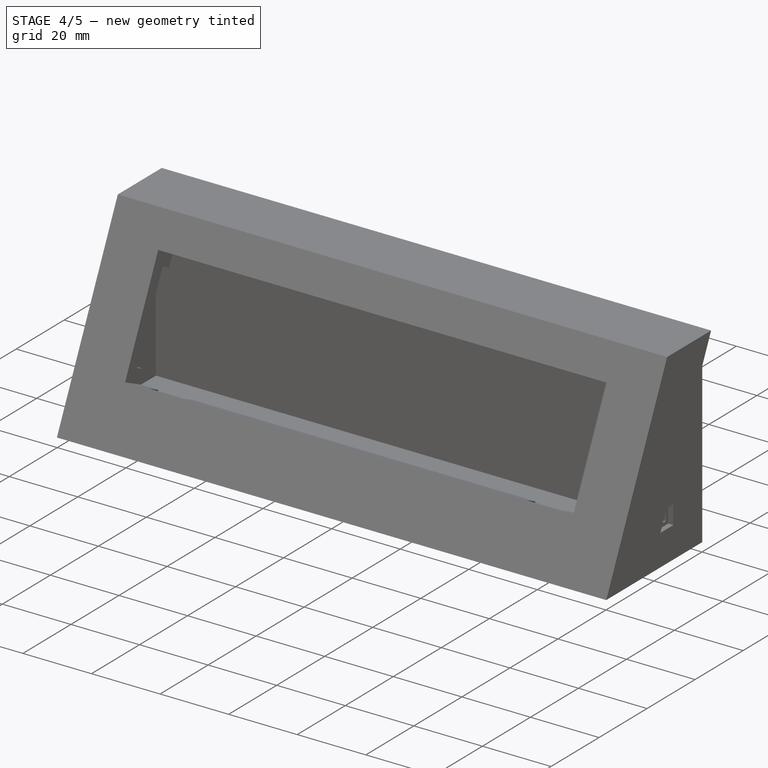
[diagram: stage 4 of 5 — iso view after this stage's code; geometry added in this stage tinted green]
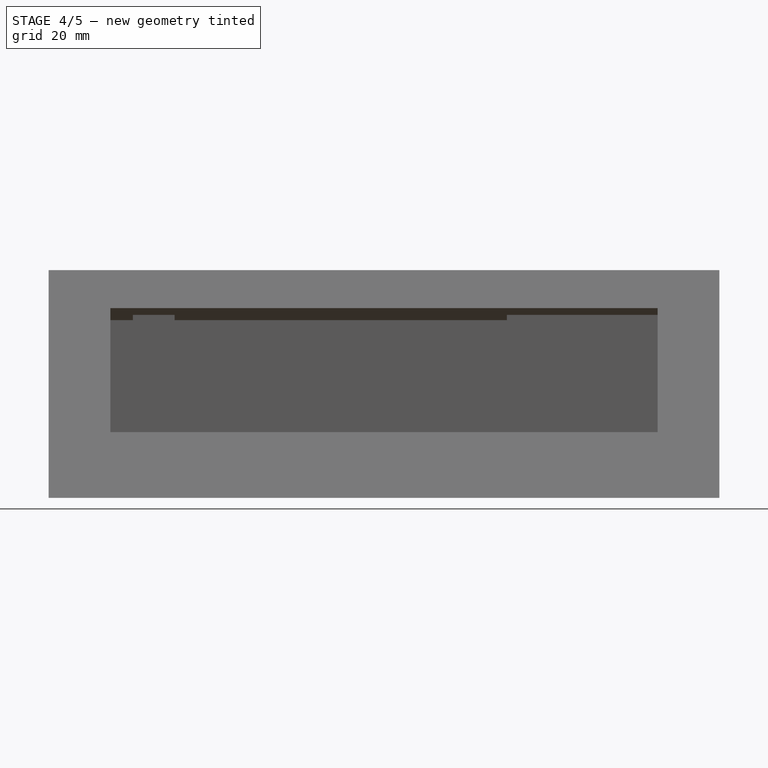
[diagram: stage 4 of 5 — front view after this stage's code; geometry added in this stage tinted green]
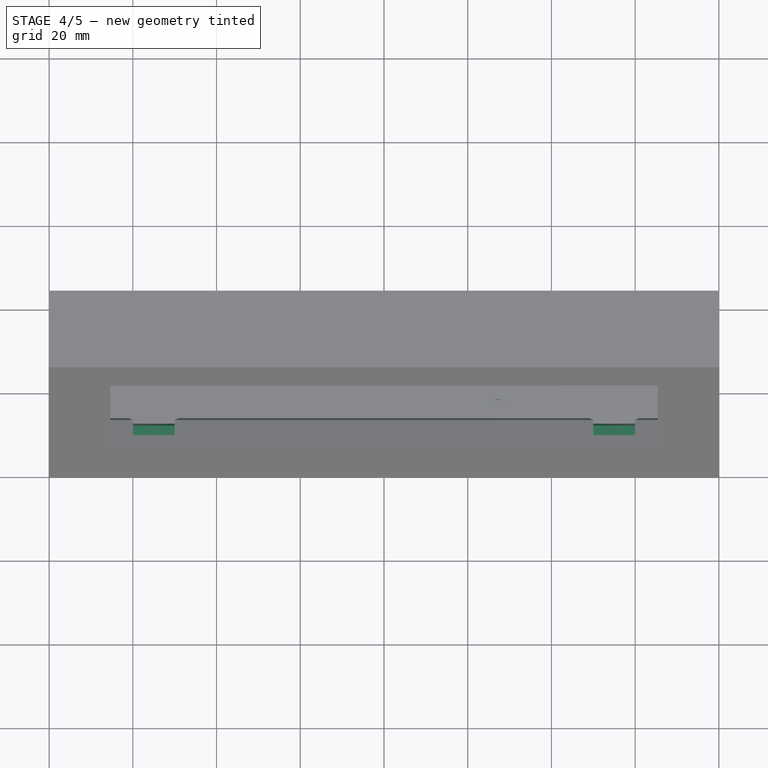
[diagram: stage 4 of 5 — top view after this stage's code; geometry added in this stage tinted green]
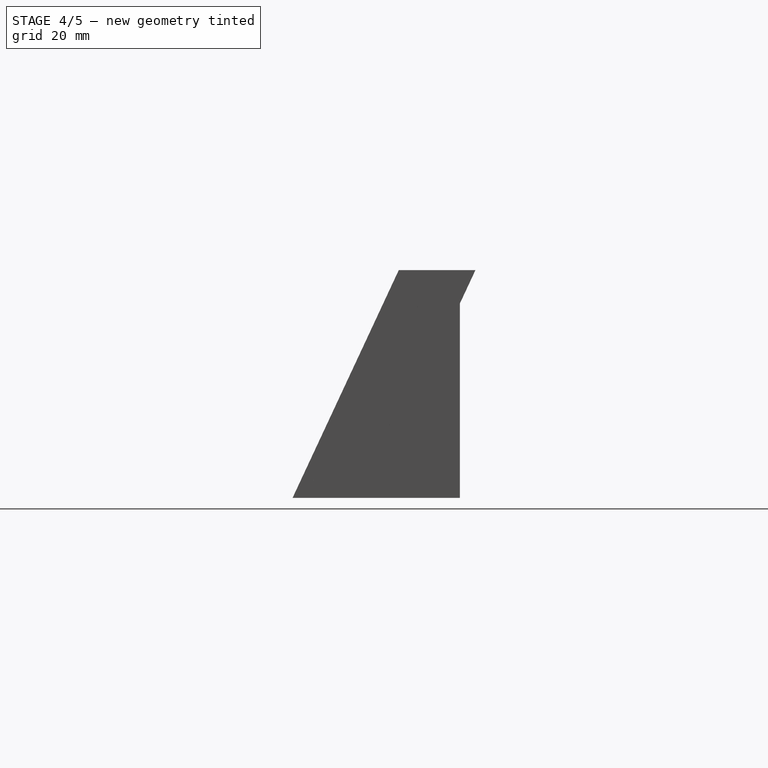
[diagram: stage 4 of 5 — right view after this stage's code; geometry added in this stage tinted green]
FEATURE [Sketcher::SketchObject] Sketch015
  ArcFitTolerance = 1e-06
  AttachmentSupport = -> [Pocket006]
  ExternalGeometry = -> [Pocket006]
  FullyConstrained = true
  MakeInternals = false
  MapMode = 5
  Placement = pos=(1.6e-15,7.0692,-3.29642) rot=(0.644711,0.644711,0.410726;3.92103rad)
  sketch-geometry (13):
    g0: LineSegment StartX=17.3 StartY=-60 StartZ=0 EndX=17.3 EndY=-50 EndZ=0
    g1: LineSegment StartX=17.3 StartY=-50 StartZ=0 EndX=14.3 EndY=-50 EndZ=0
    g2: LineSegment StartX=14.3 StartY=-50 StartZ=0 EndX=14.3 EndY=-60 EndZ=0
    g3: LineSegment StartX=14.3 StartY=-60 StartZ=0 EndX=17.3 EndY=-60 EndZ=0
    g4: LineSegment [constr] StartX=17.3 StartY=-50 StartZ=0 EndX=50 EndY=-50 EndZ=0
    g5: LineSegment [constr] StartX=50 StartY=-60 StartZ=0 EndX=17.3 EndY=-60 EndZ=0
    g6: LineSegment StartX=17.3 StartY=60 StartZ=0 EndX=14.3 EndY=60 EndZ=0
    g7: LineSegment StartX=14.3 StartY=60 StartZ=0 EndX=14.3 EndY=50 EndZ=0
    g8: LineSegment StartX=14.3 StartY=50 StartZ=0 EndX=17.3 EndY=50 EndZ=0
    g9: LineSegment StartX=17.3 StartY=50 StartZ=0 EndX=17.3 EndY=60 EndZ=0
    g10: LineSegment [constr] StartX=14.3 StartY=50 StartZ=0 EndX=14.3 EndY=-50 EndZ=0
    g11: LineSegment [constr] StartX=14.3 StartY=-60 StartZ=0 EndX=17.3 EndY=-65.35 EndZ=0
    g12: LineSegment [constr] StartX=17.3 StartY=65.35 StartZ=0 EndX=14.3 EndY=60 EndZ=0
  constraints (34):
    c: Coincident(g0,g1)
    c: Coincident(g1,g2)
    c: Coincident(g2,g3)
    c: Coincident(g3,g0)
    c: Vertical(g0)
    c: Vertical(g2)
    c: Horizontal(g1)
    c: Horizontal(g3)
    c: PointOnObject(g0,g-5)
    c: Coincident(g4,g0)
    c: Coincident(g4,g-3)
    c: Horizontal(g4)
    c: Coincident(g5,g-4)
    c: Coincident(g5,g0)
    c: Horizontal(g5)
    c: DistanceX(g1,g1) = 3
    c: Coincident(g6,g7)
    c: Coincident(g7,g8)
    c: Coincident(g8,g9)
    c: Coincident(g9,g6)
    c: Horizontal(g6)
    c: Horizontal(g8)
    c: Vertical(g7)
    c: Vertical(g9)
    c: PointOnObject(g6,g-5)
    c: Equal(g2,g7)
    c: Coincident(g10,g7)
    c: Coincident(g10,g1)
    c: Vertical(g10)
    c: Coincident(g11,g2)
    c: Coincident(g11,g-5)
    c: Coincident(g12,g-6)
    c: Coincident(g12,g6)
    c: Equal(g12,g11)
FEATURE [PartDesign::Pocket] Pocket007
  BaseFeature = -> Pocket006
  Direction = (0,-0.906308,0.422618)
  Length = 5
  Length2 = 5
  Placement = pos=(0,0,0) rot=(1,1,1;2.0944rad)
  Profile = -> Sketch015
  ReferenceAxis = -> Sketch015 [N_Axis]
  Refine = true
  Suppressed = false
  Type = 0
FEATURE [PartDesign::Chamfer] Chamfer
  Angle = 45
  Base = -> Pocket007 [Edge46,Edge45,Edge47,Edge48]
  BaseFeature = -> Pocket007
  ChamferType = 0
  FlipDirection = false
  Placement = pos=(0,0,0) rot=(1,1,1;2.0944rad)
  Refine = true
  Size = 0.4
  Size2 = 1
  SupportTransform = false
  Suppressed = false
  UseAllEdges = false
FEATURE [PartDesign::Chamfer] Chamfer001
  Angle = 45
  Base = -> Chamfer [Edge91,Edge65,Edge90,Edge59,Edge46,Edge92,Edge93,Edge94,Edge50,Edge95,Edge96,Edge97,Edge54,Edge98,Edge68,Edge100,Edge99,Edge61,Edge72,Edge87,Edge88,Edge89]
  BaseFeature = -> Chamfer
  ChamferType = 0
  FlipDirection = false
  Placement = pos=(0,0,0) rot=(1,1,1;2.0944rad)
  Refine = true
  Size = 1
  Size2 = 1
  SupportTransform = false
  Suppressed = false
  UseAllEdges = false
FEATURE [PartDesign::Chamfer] Chamfer005
  Angle = 45
  Base = -> Chamfer001 [Edge96,Edge95,Edge94,Edge93]
  BaseFeature = -> Chamfer001
  ChamferType = 0
  FlipDirection = false
  Placement = pos=(0,0,0) rot=(1,1,1;2.0944rad)
  Refine = true
  Size = 0.4
  Size2 = 1
  SupportTransform = false
  Suppressed = false
  UseAllEdges = false
FEATURE [PartDesign::Pocket] Pocket005
  BaseFeature = -> Pocket008
  Direction = (0,0,-1)
  Length = 4
  Length2 = 5
  Placement = pos=(0,0,0) rot=(1,1,1;2.0944rad)
  Profile = -> Sketch008
  ReferenceAxis = -> Sketch008 [N_Axis]
  Refine = true
  Suppressed = false
  Type = 1
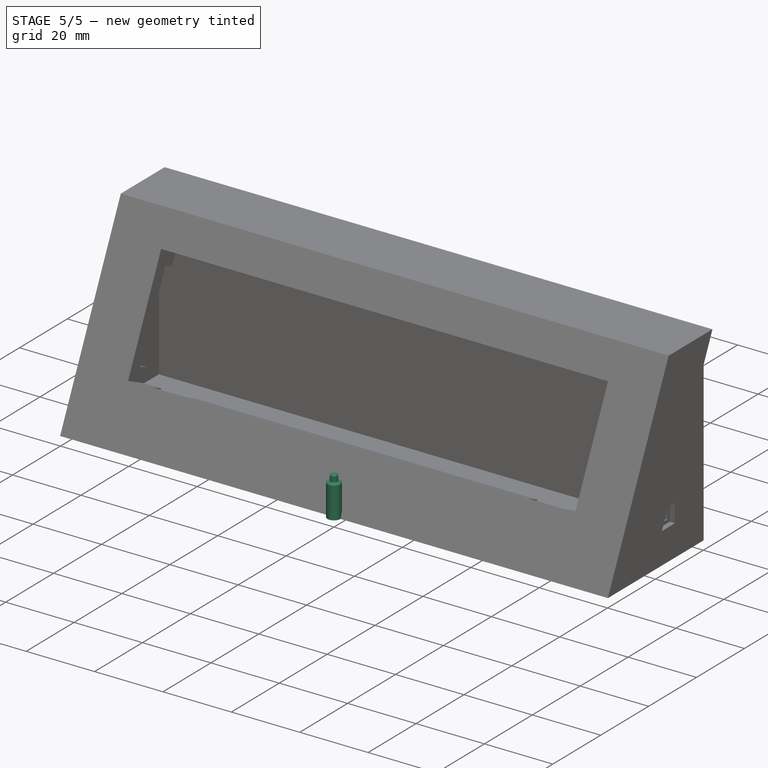
[diagram: stage 5 of 5 — iso view after this stage's code; geometry added in this stage tinted green]
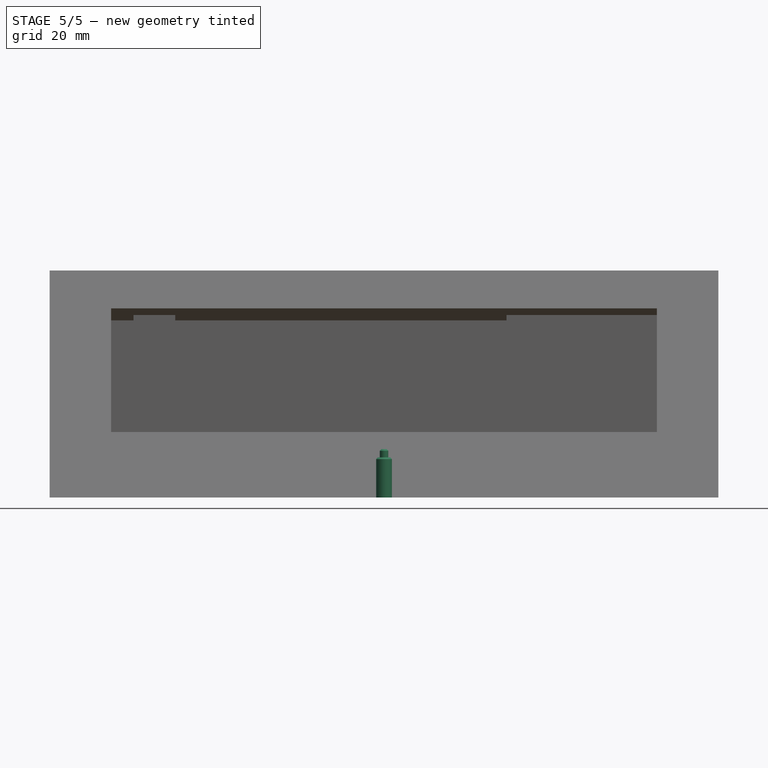
[diagram: stage 5 of 5 — front view after this stage's code; geometry added in this stage tinted green]
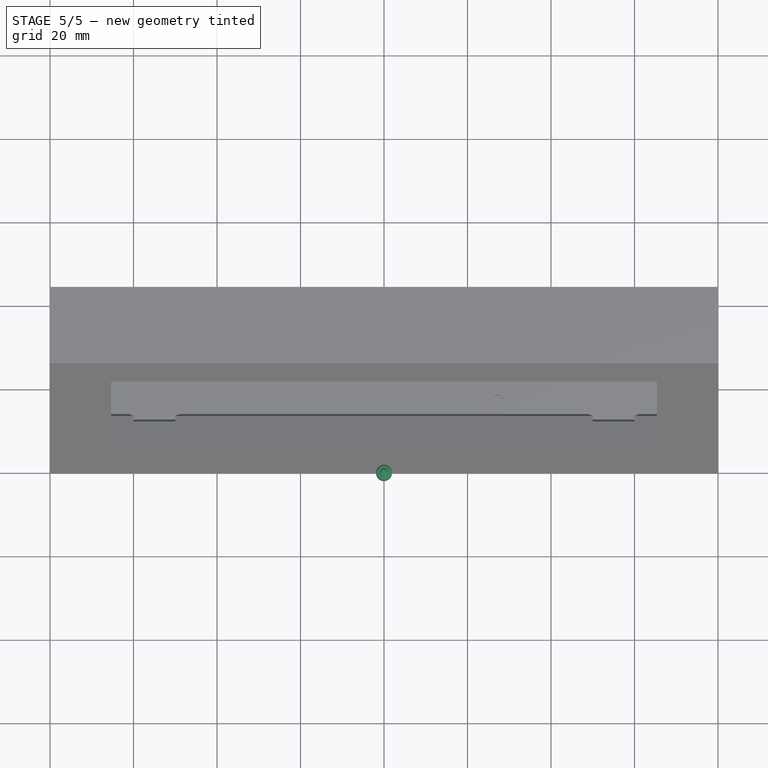
[diagram: stage 5 of 5 — top view after this stage's code; geometry added in this stage tinted green]
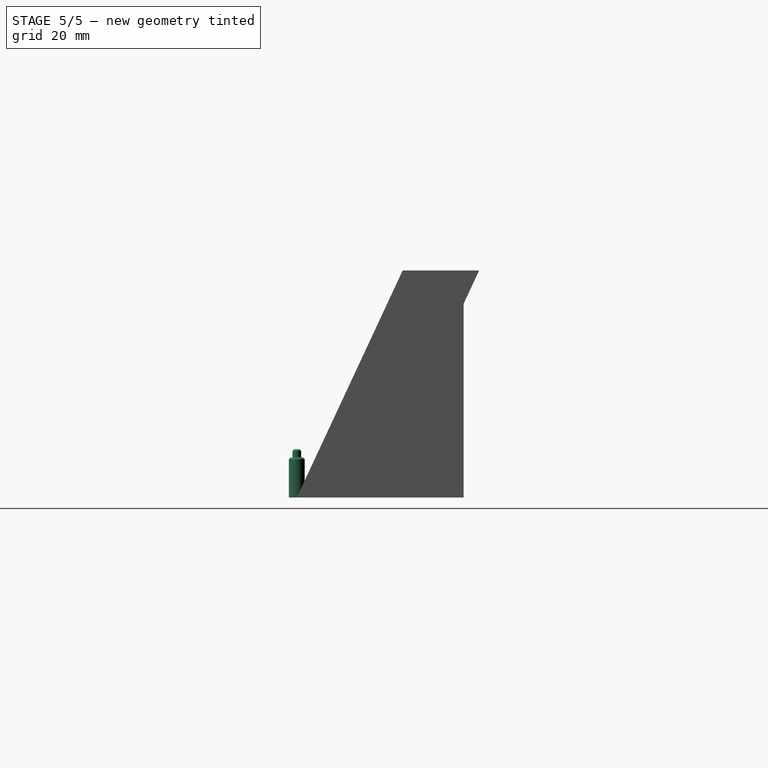
[diagram: stage 5 of 5 — right view after this stage's code; geometry added in this stage tinted green]
FEATURE [Sketcher::SketchObject] Sketch008
  ArcFitTolerance = 1e-06
  AttachmentSupport = -> [Pocket002]
  ExternalGeometry = -> [Pocket002]
  FullyConstrained = true
  MakeInternals = false
  MapMode = 5
  Placement = pos=(0,7e-16,3) rot=(0,0,-1;1.5708rad)
  sketch-geometry (22):
    g0: Circle [constr] CenterX=-28.1582 CenterY=74.1 CenterZ=0 NormalX=0 NormalY=0 NormalZ=1 AngleXU=0 Radius=1.05
    g1: Circle [constr] CenterX=-16.7582 CenterY=74.1 CenterZ=0 NormalX=0 NormalY=0 NormalZ=1 AngleXU=0 Radius=1.05
    g2: Circle [constr] CenterX=-16.7582 CenterY=27.1 CenterZ=0 NormalX=0 NormalY=0 NormalZ=1 AngleXU=0 Radius=1.05
    g3: Circle [constr] CenterX=-28.1582 CenterY=27.1 CenterZ=0 NormalX=0 NormalY=0 NormalZ=1 AngleXU=0 Radius=1.05
    g4: Circle CenterX=-16.7582 CenterY=74.1 CenterZ=0 NormalX=0 NormalY=0 NormalZ=1 AngleXU=0 Radius=1.9
    g5: Circle CenterX=-28.1582 CenterY=74.1 CenterZ=0 NormalX=0 NormalY=0 NormalZ=1 AngleXU=0 Radius=1.9
    g6: Circle CenterX=-28.1582 CenterY=27.1 CenterZ=0 NormalX=0 NormalY=0 NormalZ=1 AngleXU=0 Radius=1.9
    g7: Circle CenterX=-16.7582 CenterY=27.1 CenterZ=0 NormalX=0 NormalY=0 NormalZ=1 AngleXU=0 Radius=1.9
    g8: LineSegment [constr] StartX=-16.7582 StartY=74.1 StartZ=0 EndX=-28.1582 EndY=74.1 EndZ=0
    g9: LineSegment [constr] StartX=-28.1582 StartY=74.1 StartZ=0 EndX=-28.1582 EndY=27.1 EndZ=0
    g10: LineSegment [constr] StartX=-28.1582 StartY=27.1 StartZ=0 EndX=-16.7582 EndY=27.1 EndZ=0
    g11: LineSegment [constr] StartX=-16.7582 StartY=27.1 StartZ=0 EndX=-16.7582 EndY=74.1 EndZ=0
    g12: LineSegment [constr] StartX=-32.9582 StartY=76.1 StartZ=0 EndX=-32.9582 EndY=25.1 EndZ=0
    g13: LineSegment [constr] StartX=-32.9582 StartY=25.1 StartZ=0 EndX=-11.9582 EndY=25.1 EndZ=0
    g14: LineSegment [constr] StartX=-11.9582 StartY=25.1 StartZ=0 EndX=-11.9582 EndY=76.1 EndZ=0
    g15: LineSegment [constr] StartX=-11.9582 StartY=76.1 StartZ=0 EndX=-32.9582 EndY=76.1 EndZ=0
    g16: GeomPoint [constr] X=-22.4582 Y=27.1 Z=0
    g17: GeomPoint [constr] X=-22.4582 Y=25.1 Z=0
    g18: GeomPoint [constr] X=-28.1582 Y=50.6 Z=0
    g19: GeomPoint [constr] X=-32.9582 Y=50.6 Z=0
    g20: LineSegment [constr] StartX=-28.1582 StartY=50.6 StartZ=0 EndX=-32.9582 EndY=50.6 EndZ=0
    g21: LineSegment [constr] StartX=-22.4582 StartY=27.1 StartZ=0 EndX=-22.4582 EndY=25.1 EndZ=0
  constraints (48):
    c: Equal(g3,g2)
    c: Equal(g2,g1)
    c: Equal(g1,g0)
    c: Diameter(g1) = 2.1
    c: Coincident(g4,g1)
    c: Coincident(g5,g0)
    c: Coincident(g6,g3)
    c: Coincident(g7,g2)
    c: Equal(g7,g6)
    c: Equal(g6,g5)
    c: Equal(g5,g4)
    c: Diameter(g4) = 3.8
    c: Coincident(g8,g1)
    c: Coincident(g8,g0)
    c: Coincident(g9,g0)
    c: Coincident(g9,g3)
    c: Vertical(g9)
    c: Coincident(g10,g3)
    c: Coincident(g10,g2)
    c: Coincident(g11,g2)
    c: Coincident(g11,g1)
    c: Horizontal(g10)
    c: Vertical(g11)
    c: Horizontal(g8)
    c: DistanceY(g11,g11) = 47
    c: DistanceX(g8,g8) = 11.4
    c: Coincident(g12,g13)
    c: Coincident(g13,g14)
    c: Coincident(g14,g15)
    c: Coincident(g15,g12)
    c: Vertical(g12)
    c: Vertical(g14)
    c: Horizontal(g13)
    c: Horizontal(g15)
    c: DistanceX(g15,g15) = 21
    c: DistanceY(g12,g12) = 51
    c: Symmetric(g10,g10,g16)
    c: Symmetric(g13,g13,g17)
    c: Symmetric(g12,g12,g19)
    c: Symmetric(g9,g9,g18)
    c: Coincident(g20,g18)
    c: Coincident(g20,g19)
    c: Coincident(g21,g16)
    c: Coincident(g21,g17)
    c: Vertical(g21)
    c: Horizontal(g20)
    c: DistanceY(g12,g-4) = 1
    c: DistanceX(g-4,g12) = 4
FEATURE [Sketcher::SketchObject] Sketch012
  ArcFitTolerance = 1e-06
  AttachmentSupport = -> [XY_Plane002]
  FullyConstrained = true
  MakeInternals = false
  MapMode = 5
  sketch-geometry (1):
    g0: Circle CenterX=0 CenterY=0 CenterZ=0 NormalX=0 NormalY=0 NormalZ=1 AngleXU=0 Radius=1.9
  constraints (2):
    c: Coincident(g0,g-1)
    c: Diameter(g0) = 3.8
FEATURE [PartDesign::Pad] Pad005
  Direction = (0,0,1)
  Length = 9.6
  Length2 = 10
  Profile = -> Sketch012
  ReferenceAxis = -> Sketch012 [N_Axis]
  Refine = true
  Suppressed = false
  Type = 0
  expr: Length = 3 + 5 + 1.6
FEATURE [Sketcher::SketchObject] Sketch013
  ArcFitTolerance = 1e-06
  AttachmentSupport = -> [Pad005]
  FullyConstrained = true
  MakeInternals = false
  MapMode = 5
  Placement = pos=(0,0,9.6) rot=(0,0,1;0rad)
  sketch-geometry (1):
    g0: Circle CenterX=0 CenterY=0 CenterZ=0 NormalX=0 NormalY=0 NormalZ=1 AngleXU=0 Radius=1.025
  constraints (2):
    c: Coincident(g0,g-1)
    c: Diameter(g0) = 2.05
FEATURE [PartDesign::Pad] Pad006
  BaseFeature = -> Pad005
  Direction = (0,0,1)
  Length = 2
  Length2 = 10
  Profile = -> Sketch013
  ReferenceAxis = -> Sketch013 [N_Axis]
  Refine = true
  Suppressed = false
  Type = 0
FEATURE [PartDesign::Chamfer] Chamfer002
  Angle = 45
  Base = -> Pad006 [Edge6]
  BaseFeature = -> Pad006
  ChamferType = 0
  FlipDirection = false
  Refine = true
  Size = 0.4
  Size2 = 1
  SupportTransform = false
  Suppressed = false
  UseAllEdges = false
FEATURE [PartDesign::Chamfer] Chamfer003
  Angle = 45
  Base = -> Chamfer002 [Edge6]
  BaseFeature = -> Chamfer002
  ChamferType = 0
  FlipDirection = false
  Refine = true
  Size = 0.4
  Size2 = 1
  SupportTransform = false
  Suppressed = false
  UseAllEdges = false
FEATURE [PartDesign::Chamfer] Chamfer004
  Angle = 45
  Base = -> Pocket005 [Edge37,Edge39,Edge35,Edge40]
  BaseFeature = -> Pocket005
  ChamferType = 0
  FlipDirection = false
  Placement = pos=(0,0,0) rot=(1,1,1;2.0944rad)
  Refine = true
  Size = 0.4
  Size2 = 1
  SupportTransform = false
  Suppressed = false
  UseAllEdges = false
FEATURE [PartDesign::Body] Body001  label="C1142"
  AllowCompound = false
  Group = -> [Sketch005,Pad003,Sketch006,Pad004,Mirrored001,Sketch007,Pocket002,Sketch010,Pocket003,Sketch011,Pocket004,Sketch008,Sketch016,Pocket008,Pocket005,Chamfer004]
  Origin = -> Origin001
  Placement = pos=(0,15.25,0) rot=(0,0,1;0rad)
  Tip = -> Chamfer004
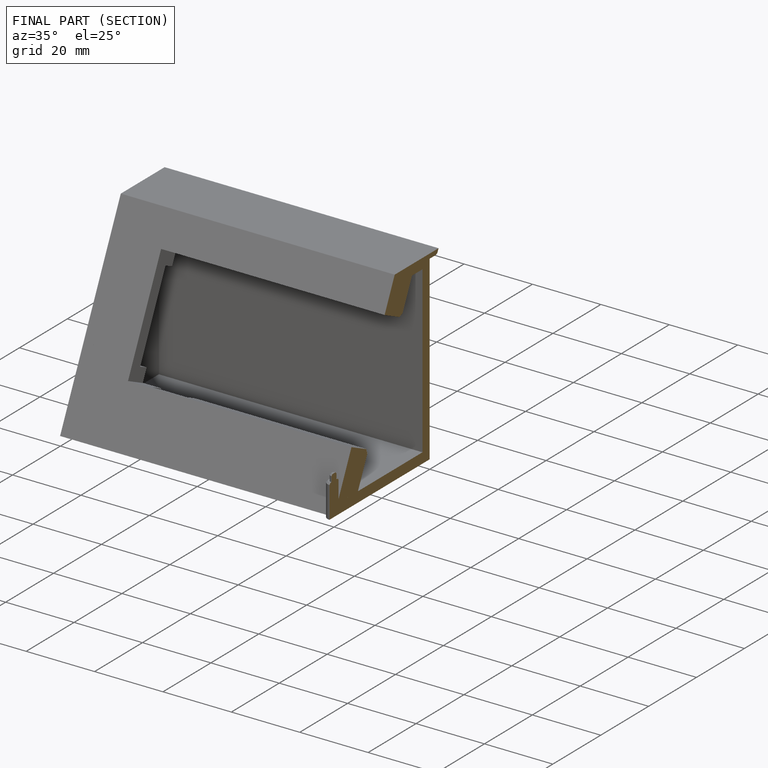
[diagram: finished part — half-section view (interior)]
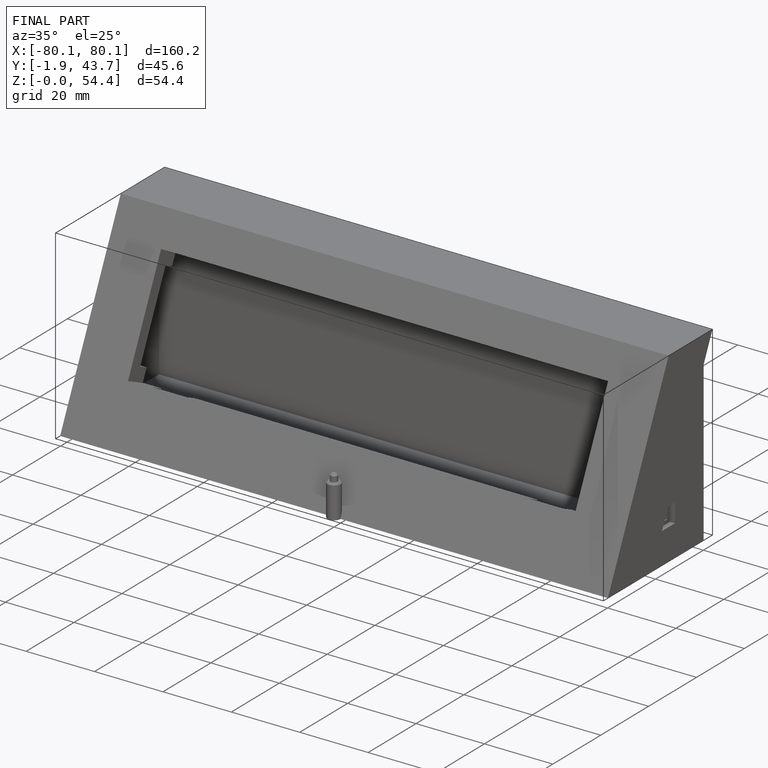
[diagram: finished part — iso view with bounding-box wireframe]
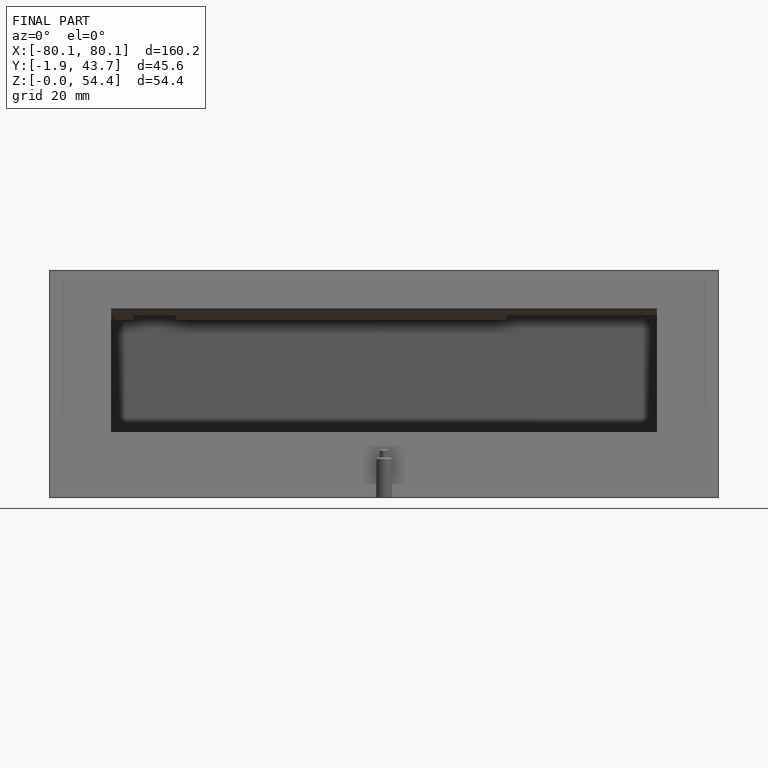
[diagram: finished part — front view with bounding-box wireframe]
